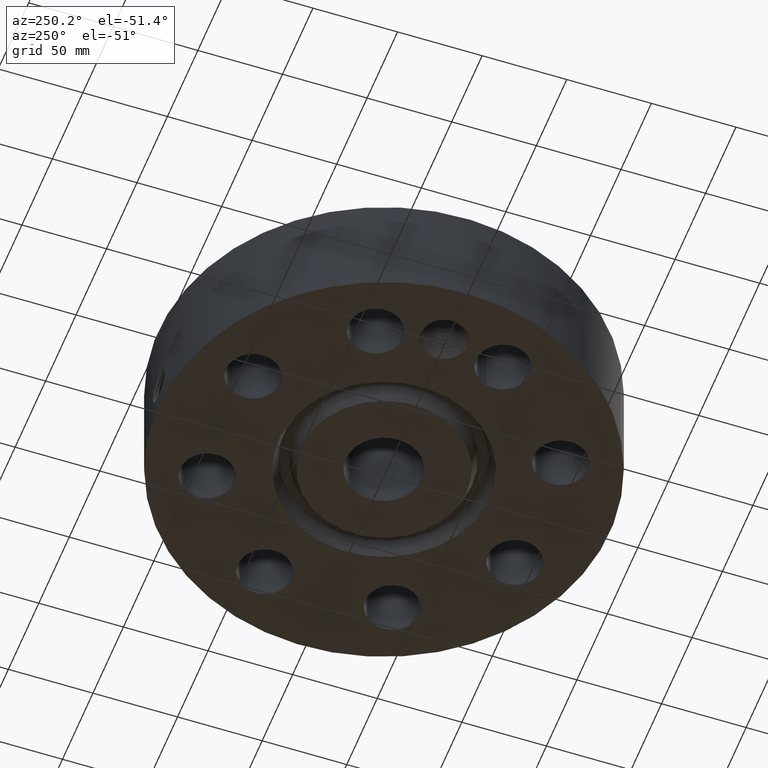
[diagram: clean part render]
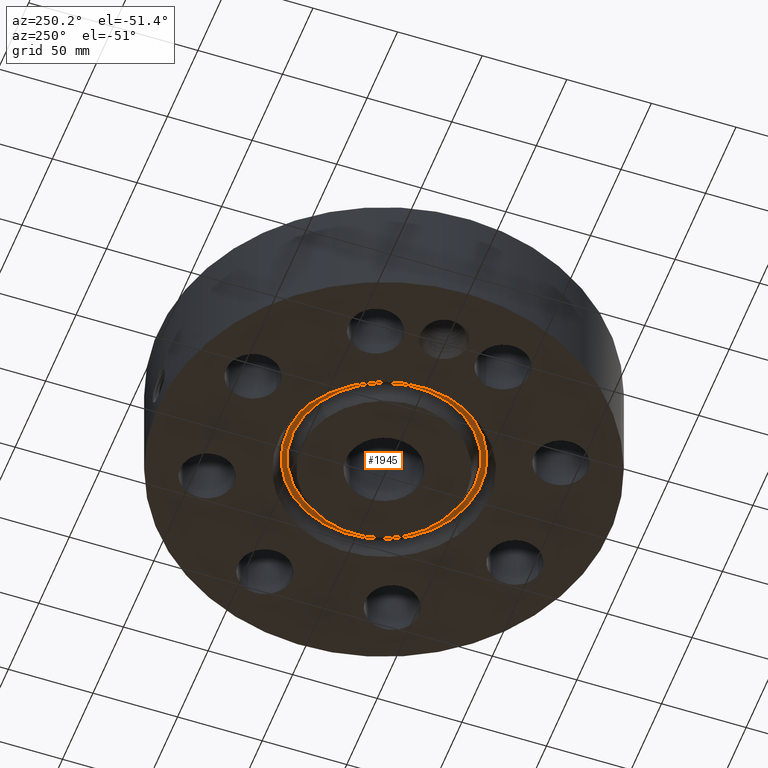
[diagram: same view with one face highlighted and labeled with its STEP entity id]
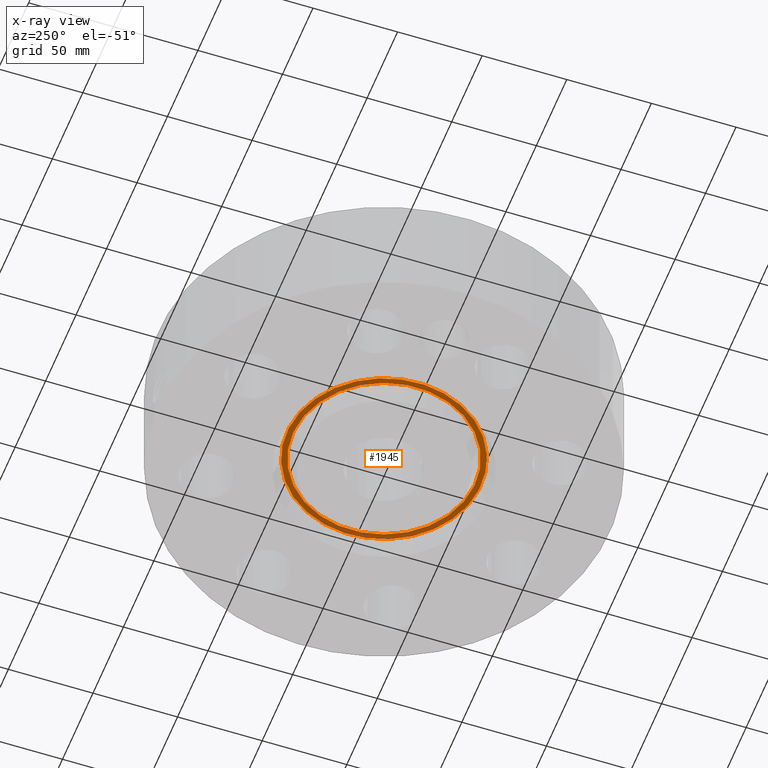
[diagram: x-ray of the same camera — body ghosted, the highlighted face saturated]
A machine part, auxiliary view. The second image highlights one B-rep face of the part: STEP entity #1945.
The next image is the same camera in x-ray: the body ghosted, the highlighted face saturated — about 0% of this face is hidden behind the body in this view.
In plain terms, the highlighted planar face has unit normal (0, 0, 1).
Its self-contained STEP definition (entity closure, byte-faithful):
#1425=AXIS2_PLACEMENT_3D('Circle Axis2P3D',#1423,#1424,$) ;
#1451=AXIS2_PLACEMENT_3D('Circle Axis2P3D',#1449,#1450,$) ;
#1921=AXIS2_PLACEMENT_3D('Plane Axis2P3D',#1918,#1919,#1920) ;
#1925=AXIS2_PLACEMENT_3D('Circle Axis2P3D',#1923,#1924,$) ;
#1934=AXIS2_PLACEMENT_3D('Circle Axis2P3D',#1932,#1933,$) ;
#1423=CARTESIAN_POINT('Axis2P3D Location',(0.,0.,0.375000000002)) ;
#1427=CARTESIAN_POINT('Vertex',(1.01680940097,-1.8612571238,0.375000000002)) ;
#1429=CARTESIAN_POINT('Vertex',(-1.01680940097,1.8612571238,0.375000000002)) ;
#1449=CARTESIAN_POINT('Axis2P3D Location',(0.,0.,0.375000000002)) ;
#1918=CARTESIAN_POINT('Axis2P3D Location',(0.,2.12089118976,0.375000000001)) ;
#1923=CARTESIAN_POINT('Axis2P3D Location',(0.,0.,0.375000000001)) ;
#1927=CARTESIAN_POINT('Vertex',(-1.08067733043,1.97816658449,0.375000000001)) ;
#1929=CARTESIAN_POINT('Vertex',(1.08067733043,-1.97816658449,0.375000000001)) ;
#1932=CARTESIAN_POINT('Axis2P3D Location',(0.,0.,0.375000000001)) ;
#1424=DIRECTION('Axis2P3D Direction',(0.,0.,0.0393700787402)) ;
#1450=DIRECTION('Axis2P3D Direction',(0.,0.,0.0393700787402)) ;
#1919=DIRECTION('Axis2P3D Direction',(0.,0.,0.0393700787402)) ;
#1920=DIRECTION('Axis2P3D XDirection',(0.0393700787402,0.,0.)) ;
#1924=DIRECTION('Axis2P3D Direction',(0.,0.,0.0393700787402)) ;
#1933=DIRECTION('Axis2P3D Direction',(0.,0.,0.0393700787402)) ;
#1938=ORIENTED_EDGE('',*,*,#1931,.F.) ;
#1939=ORIENTED_EDGE('',*,*,#1936,.F.) ;
#1942=ORIENTED_EDGE('',*,*,#1431,.T.) ;
#1943=ORIENTED_EDGE('',*,*,#1453,.T.) ;
#1944=FACE_BOUND('',#1941,.T.) ;
#1945=ADVANCED_FACE('PartBody',(#1940,#1944),#1922,.F.) ;
#1426=CIRCLE('generated circle',#1425,2.12089118976) ;
#1452=CIRCLE('generated circle',#1451,2.12089118976) ;
#1926=CIRCLE('generated circle',#1925,2.25410881026) ;
#1935=CIRCLE('generated circle',#1934,2.25410881026) ;
#1431=EDGE_CURVE('',#1428,#1430,#1426,.T.) ;
#1453=EDGE_CURVE('',#1430,#1428,#1452,.T.) ;
#1931=EDGE_CURVE('',#1928,#1930,#1926,.T.) ;
#1936=EDGE_CURVE('',#1930,#1928,#1935,.T.) ;
#1937=EDGE_LOOP('',(#1938,#1939)) ;
#1941=EDGE_LOOP('',(#1942,#1943)) ;
#1940=FACE_OUTER_BOUND('',#1937,.T.) ;
#1922=PLANE('',#1921) ;
#1428=VERTEX_POINT('',#1427) ;
#1430=VERTEX_POINT('',#1429) ;
#1928=VERTEX_POINT('',#1927) ;
#1930=VERTEX_POINT('',#1929) ;